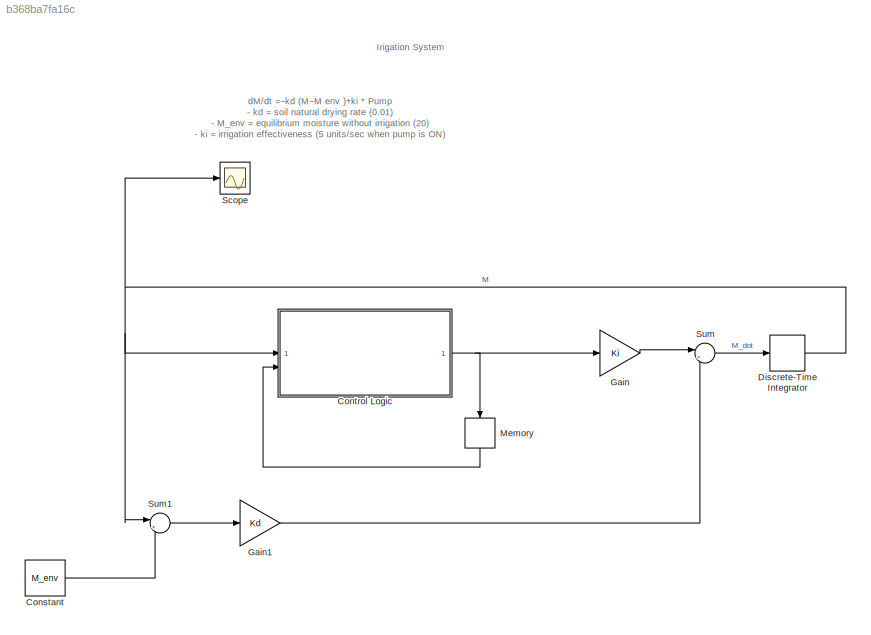
MODEL slx_b368ba7fa16c
KIND model
CONFIG AbsTol = auto
CONFIG EnableMultiTasking = off
CONFIG FixedStep = 1
CONFIG MaxStep = auto
CONFIG MinStep = auto
CONFIG RelTol = 1e-3
CONFIG SampleTimeConstraint = Unconstrained
CONFIG SolverName = FixedStepDiscrete
CONFIG StartTime = 0.0
CONFIG StopTime = 300
WORKSPACE source: mxarray member
WORKSPACE Kd = 0.01
WORKSPACE Ki = 5
WORKSPACE M_env = 20
BLOCK [Constant] Constant
  Value = M_env
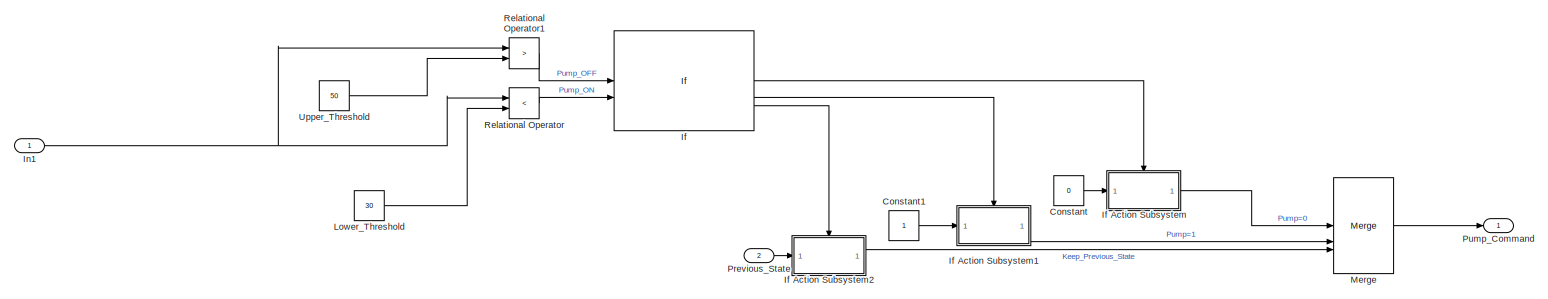
[diagram: Control Logic - part 1/1, most of the canvas]
BLOCK [SubSystem] Control Logic
BLOCK [Constant] Control Logic/Constant
  Value = 0
BLOCK [Constant] Control Logic/Constant1
BLOCK [If] Control Logic/If
  ElseIfExpressions = u2==1
  IfExpression = u1==1
  NumInputs = 2
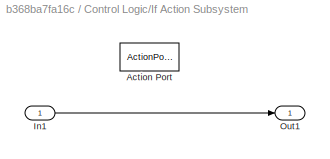
BLOCK [SubSystem] Control Logic/If Action Subsystem
  TreatAsAtomicUnit = on
BLOCK [ActionPort] Control Logic/If Action Subsystem/Action Port
  ActionPortLabel = if(u1==1)
BLOCK [Inport] Control Logic/If Action Subsystem/In1
BLOCK [Outport] Control Logic/If Action Subsystem/Out1
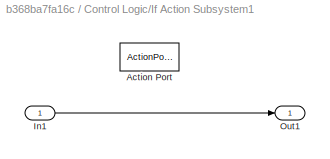
BLOCK [SubSystem] Control Logic/If Action Subsystem1
  TreatAsAtomicUnit = on
BLOCK [ActionPort] Control Logic/If Action Subsystem1/Action Port
  ActionPortLabel = elseif(u2==1)
BLOCK [Inport] Control Logic/If Action Subsystem1/In1
BLOCK [Outport] Control Logic/If Action Subsystem1/Out1
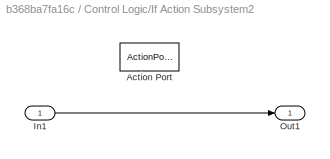
BLOCK [SubSystem] Control Logic/If Action Subsystem2
  TreatAsAtomicUnit = on
BLOCK [ActionPort] Control Logic/If Action Subsystem2/Action Port
  ActionPortLabel = else
BLOCK [Inport] Control Logic/If Action Subsystem2/In1
BLOCK [Outport] Control Logic/If Action Subsystem2/Out1
BLOCK [Inport] Control Logic/In1
BLOCK [Constant] Control Logic/Lower_Threshold
  Value = 30
BLOCK [Merge] Control Logic/Merge
  Inputs = 3
BLOCK [Inport] Control Logic/Previous_State
  Port = 2
BLOCK [Outport] Control Logic/Pump_Command
BLOCK [RelationalOperator] Control Logic/Relational Operator
  InputSameDT = off
  Operator = <
  OutDataTypeStr = boolean
  RndMeth = Simplest
BLOCK [RelationalOperator] Control Logic/Relational Operator1
  InputSameDT = off
  Operator = >
  OutDataTypeStr = boolean
  RndMeth = Simplest
BLOCK [Constant] Control Logic/Upper_Threshold
  Value = 50
BLOCK [DiscreteIntegrator] Discrete-Time Integrator
  ICPrevOutput = DiscIntNeverNeededParam
  ICPrevScaledInput = DiscIntNeverNeededParam
  InitialConditionSetting = Auto
  SampleTime = -1
BLOCK [Gain] Gain
  Gain = Ki
BLOCK [Gain] Gain1
  Gain = Kd
BLOCK [Memory] Memory
  NameLocation = left
BLOCK [Scope] Scope
  Floating = off
  NumInputPorts = 1
  ScopeSpecificationString = Simulink.scopes.TimeScopeBlockCfg('CurrentConfiguration', extmgr.ConfigurationSet(extmgr.Configuration('Core','General UI',true),extmgr.Configuration('Core','Source UI',true),extmgr.Configuration('Sources','WiredSimulink',true),extmgr.Configuration('Visuals','Time Domain',true,'SerializedDisplays',{struct('MinYLimReal','-7.566','MaxYLimReal','68.094','YLabelReal','','MinYLimMag','0.00000','MaxYLim...<+1372ch>
BLOCK [Sum] Sum
  Inputs = |+-
BLOCK [Sum] Sum1
  Inputs = |+-
ANNOTATION (root): dM​/dt =−kd​ (M−M env​ )+ki * Pump - kd = soil natural drying rate (0.01) - M_env = equilibrium moisture without irrigation (20) - ki = irrigation effectiveness (5 units/sec when pump is ON)
ANNOTATION (root): Irigation System
LINE Constant:1 -> Sum1:2
LINE Control Logic/Constant1:1 -> Control Logic/If Action Subsystem1:1
LINE Control Logic/Constant:1 -> Control Logic/If Action Subsystem:1
LINE Control Logic/If Action Subsystem/In1:1 -> Control Logic/If Action Subsystem/Out1:1
LINE Control Logic/If Action Subsystem1/In1:1 -> Control Logic/If Action Subsystem1/Out1:1
LINE Control Logic/If Action Subsystem1:1 -> Control Logic/Merge:2
LINE Control Logic/If Action Subsystem2/In1:1 -> Control Logic/If Action Subsystem2/Out1:1
LINE Control Logic/If Action Subsystem2:1 -> Control Logic/Merge:3
LINE Control Logic/If Action Subsystem:1 -> Control Logic/Merge:1
LINE Control Logic/If:1 -> Control Logic/If Action Subsystem:ifaction
LINE Control Logic/If:2 -> Control Logic/If Action Subsystem1:ifaction
LINE Control Logic/If:3 -> Control Logic/If Action Subsystem2:ifaction
NET Control Logic/In1:1 -> Control Logic/Relational Operator1:1, Control Logic/Relational Operator:1
LINE Control Logic/Lower_Threshold:1 -> Control Logic/Relational Operator:2
LINE Control Logic/Merge:1 -> Control Logic/Pump_Command:1
LINE Control Logic/Previous_State:1 -> Control Logic/If Action Subsystem2:1
LINE Control Logic/Relational Operator1:1 -> Control Logic/If:1
LINE Control Logic/Relational Operator:1 -> Control Logic/If:2
LINE Control Logic/Upper_Threshold:1 -> Control Logic/Relational Operator1:2
NET Control Logic:1 -> Gain:1, Memory:1
NET Discrete-Time Integrator:1 -> Control Logic:1, Scope:1, Sum1:1
LINE Gain1:1 -> Sum:2
LINE Gain:1 -> Sum:1
LINE Memory:1 -> Control Logic:2
LINE Sum1:1 -> Gain1:1
LINE Sum:1 -> Discrete-Time Integrator:1
note: NET lines group one-source signal fan-out (src -> all destinations, sorted); 1:1 wires keep LINE
